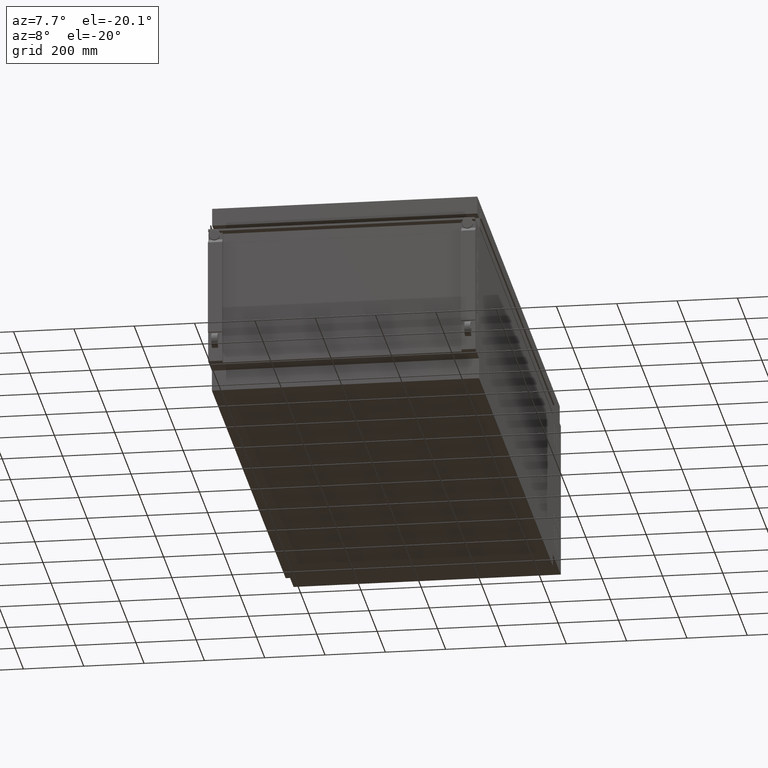
[diagram: clean part render]
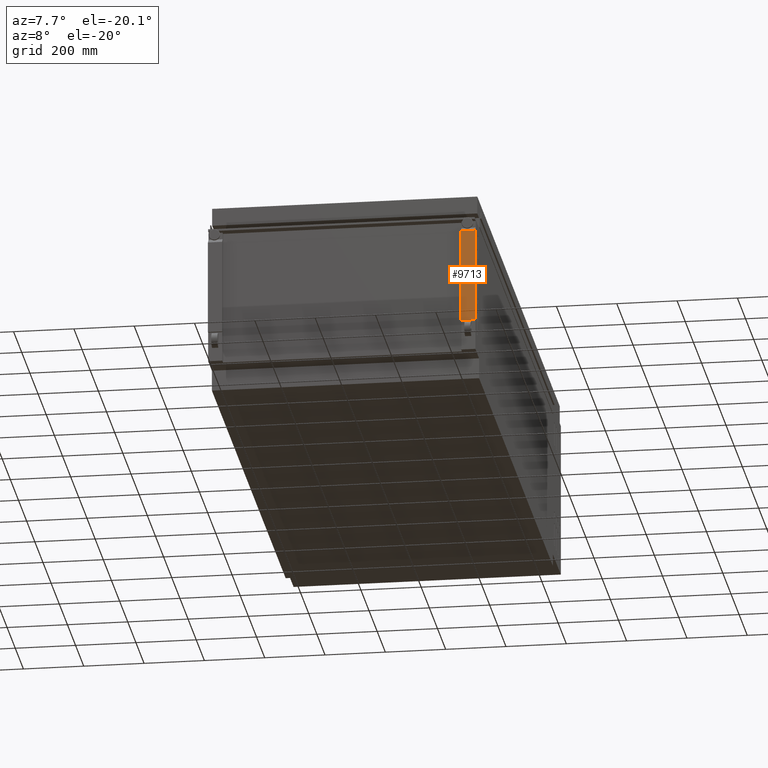
[diagram: same view with one face highlighted and labeled with its STEP entity id]
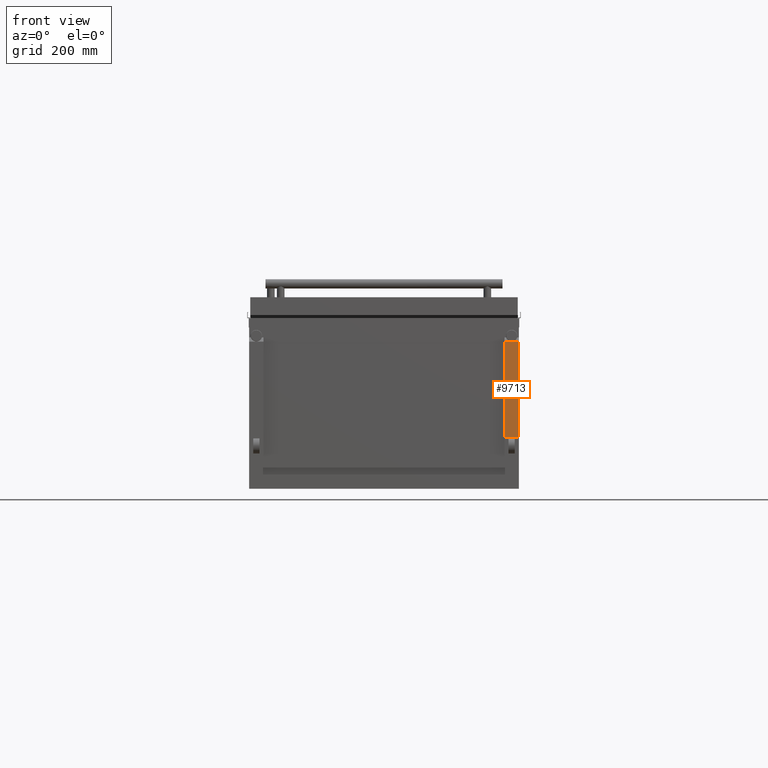
[diagram: same view with one face highlighted and labeled with its STEP entity id]
A machine part, auxiliary view. The second image highlights one B-rep face of the part: STEP entity #9713.
A second angle (front view) of the same face is appended — the face is thin or edge-on in the first view.
In plain terms, the highlighted planar face has unit normal (-0, 1, 0).
Its self-contained STEP definition (entity closure, byte-faithful):
#1700 = VERTEX_POINT ( 'NONE', #16134 ) ;
#2007 = LINE ( 'NONE', #19030, #5506 ) ;
#2672 = DIRECTION ( 'NONE',  ( 1.000000000000000000, -0.0000000000000000000, -0.0000000000000000000 ) ) ;
#2702 = CARTESIAN_POINT ( 'NONE',  ( 395.9999999999999400, -953.3499999999998000, -110.3999999999987300 ) ) ;
#3316 = VERTEX_POINT ( 'NONE', #2702 ) ;
#3360 = EDGE_CURVE ( 'NONE', #13697, #8310, #7344, .T. ) ;
#3471 = ORIENTED_EDGE ( 'NONE', *, *, #15677, .T. ) ;
#4441 = DIRECTION ( 'NONE',  ( 0.0000000000000000000, 0.0000000000000000000, -1.000000000000000000 ) ) ;
#4622 = CARTESIAN_POINT ( 'NONE',  ( 396.0000000000000000, -953.3499999999999100, 279.9999999999999400 ) ) ;
#5258 = LINE ( 'NONE', #14919, #18162 ) ;
#5506 = VECTOR ( 'NONE', #15893, 1000.000000000000000 ) ;
#5615 = CARTESIAN_POINT ( 'NONE',  ( 443.0000000000000000, -953.3499999999998000, -110.3999999999987300 ) ) ;
#5694 = EDGE_CURVE ( 'NONE', #1700, #13697, #5258, .T. ) ;
#6663 = EDGE_LOOP ( 'NONE', ( #12243, #8217, #3471, #14619 ) ) ;
#6697 = CARTESIAN_POINT ( 'NONE',  ( 443.0000000000000000, -953.3499999999999100, 279.9999999999999400 ) ) ;
#7344 = LINE ( 'NONE', #7461, #8515 ) ;
#7461 = CARTESIAN_POINT ( 'NONE',  ( 443.0000000000000000, -953.3499999999999100, 279.9999999999999400 ) ) ;
#8217 = ORIENTED_EDGE ( 'NONE', *, *, #8997, .T. ) ;
#8310 = VERTEX_POINT ( 'NONE', #5615 ) ;
#8515 = VECTOR ( 'NONE', #4441, 1000.000000000000000 ) ;
#8997 = EDGE_CURVE ( 'NONE', #1700, #3316, #13972, .T. ) ;
#9713 = ADVANCED_FACE ( 'NONE', ( #16495 ), #12531, .F. ) ;
#12243 = ORIENTED_EDGE ( 'NONE', *, *, #5694, .F. ) ;
#12531 = PLANE ( 'NONE',  #13198 ) ;
#13198 = AXIS2_PLACEMENT_3D ( 'NONE', #6697, #17042, #15666 ) ;
#13689 = DIRECTION ( 'NONE',  ( 0.0000000000000000000, 0.0000000000000000000, -1.000000000000000000 ) ) ;
#13697 = VERTEX_POINT ( 'NONE', #16074 ) ;
#13972 = LINE ( 'NONE', #4622, #14447 ) ;
#14447 = VECTOR ( 'NONE', #13689, 1000.000000000000000 ) ;
#14619 = ORIENTED_EDGE ( 'NONE', *, *, #3360, .F. ) ;
#14919 = CARTESIAN_POINT ( 'NONE',  ( -443.0000000000000000, -953.3499999999999100, 203.1000000000014700 ) ) ;
#15666 = DIRECTION ( 'NONE',  ( 0.0000000000000000000, -0.0000000000000000000, 1.000000000000000000 ) ) ;
#15677 = EDGE_CURVE ( 'NONE', #3316, #8310, #2007, .T. ) ;
#15893 = DIRECTION ( 'NONE',  ( 1.000000000000000000, -0.0000000000000000000, -0.0000000000000000000 ) ) ;
#16074 = CARTESIAN_POINT ( 'NONE',  ( 443.0000000000000000, -953.3499999999999100, 203.1000000000014700 ) ) ;
#16134 = CARTESIAN_POINT ( 'NONE',  ( 396.0000000000000000, -953.3499999999999100, 203.1000000000014200 ) ) ;
#16495 = FACE_OUTER_BOUND ( 'NONE', #6663, .T. ) ;
#17042 = DIRECTION ( 'NONE',  ( -0.0000000000000000000, 1.000000000000000000, 0.0000000000000000000 ) ) ;
#18162 = VECTOR ( 'NONE', #2672, 1000.000000000000000 ) ;
#19030 = CARTESIAN_POINT ( 'NONE',  ( -443.0000000000000000, -953.3499999999998000, -110.3999999999987300 ) ) ;